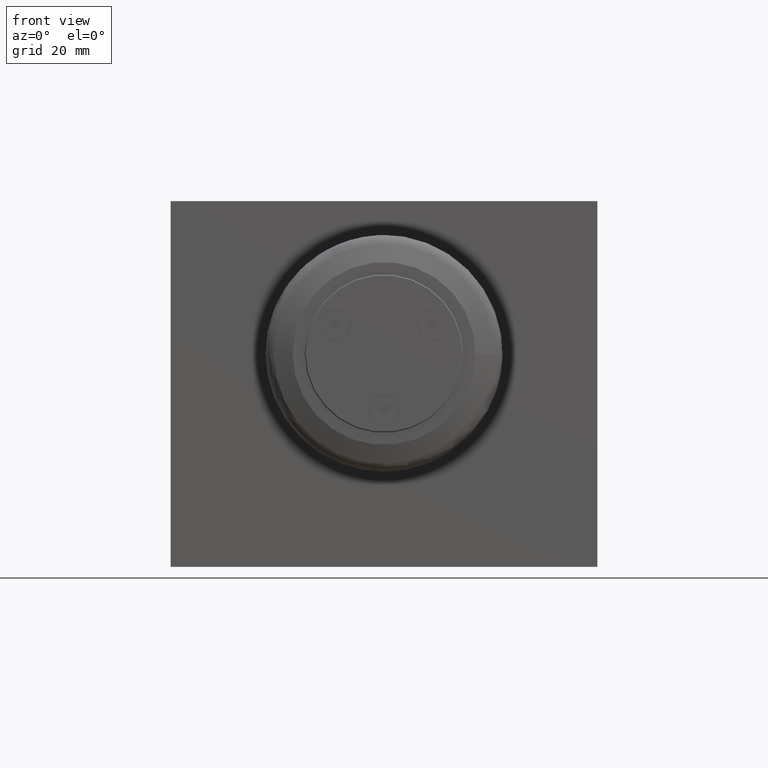
[diagram: clean part render]
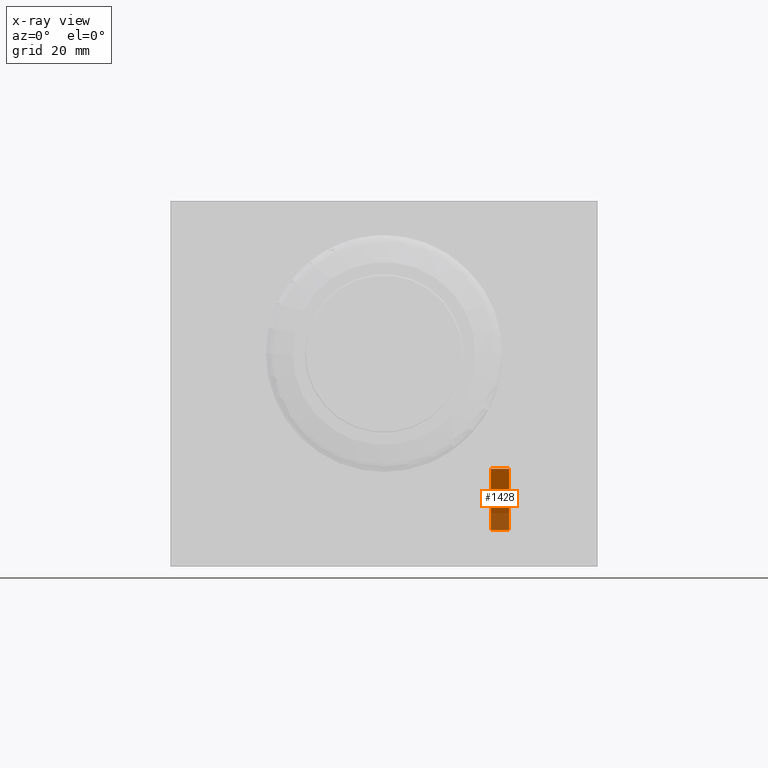
[diagram: x-ray — body ghosted, one internal face saturated and labeled with its STEP entity id]
A machine part, front view, then the same camera in x-ray: the body is ghosted and one INTERNAL B-rep face — a face not visible from any outside direction — is saturated and labeled: STEP entity #1428.
In plain terms, the highlighted planar face has unit normal (0, -0.7071, -0.7071).
Its self-contained STEP definition (entity closure, byte-faithful):
#205=FACE_OUTER_BOUND('',#308,.T.);
#308=EDGE_LOOP('',(#1272,#1273,#1274,#1275));
#396=LINE('',#2324,#526);
#417=LINE('',#2380,#547);
#433=LINE('',#2414,#563);
#437=LINE('',#2421,#567);
#526=VECTOR('',#1878,10.);
#547=VECTOR('',#1935,10.);
#563=VECTOR('',#1969,10.);
#567=VECTOR('',#1975,10.);
#674=VERTEX_POINT('',#2321);
#675=VERTEX_POINT('',#2323);
#691=VERTEX_POINT('',#2377);
#692=VERTEX_POINT('',#2379);
#844=EDGE_CURVE('',#674,#675,#396,.T.);
#872=EDGE_CURVE('',#691,#692,#417,.T.);
#889=EDGE_CURVE('',#692,#674,#433,.T.);
#893=EDGE_CURVE('',#691,#675,#437,.T.);
#1272=ORIENTED_EDGE('',*,*,#893,.T.);
#1273=ORIENTED_EDGE('',*,*,#844,.F.);
#1274=ORIENTED_EDGE('',*,*,#889,.F.);
#1275=ORIENTED_EDGE('',*,*,#872,.F.);
#1354=PLANE('',#1585);
#1428=ADVANCED_FACE('',(#205),#1354,.T.);
#1585=AXIS2_PLACEMENT_3D('',#2432,#1987,#1988);
#1878=DIRECTION('',(-1.,-2.21963426090634E-32,-5.47619791712236E-48));
#1935=DIRECTION('',(1.,-6.38889756997609E-48,2.21963426090634E-32));
#1969=DIRECTION('',(1.56951843764086E-32,0.707106781186548,-0.707106781186547));
#1975=DIRECTION('',(1.56951843764086E-32,0.707106781186548,-0.707106781186547));
#1987=DIRECTION('center_axis',(1.56951843764086E-32,-0.707106781186547,
-0.707106781186548));
#1988=DIRECTION('ref_axis',(-1.,-3.91153038217986E-48,-2.21963426090634E-32));
#2321=CARTESIAN_POINT('',(111.,32.1471862576142,12.));
#2323=CARTESIAN_POINT('',(105.,32.1471862576142,12.));
#2324=CARTESIAN_POINT('',(55.5,32.1471862576142,12.));
#2377=CARTESIAN_POINT('',(105.,11.9999999999999,32.1471862576143));
#2379=CARTESIAN_POINT('',(111.,11.9999999999999,32.1471862576143));
#2380=CARTESIAN_POINT('',(55.5,12.,32.1471862576142));
#2414=CARTESIAN_POINT('',(111.,11.9999999999999,32.1471862576143));
#2421=CARTESIAN_POINT('',(105.,11.9999999999999,32.1471862576143));
#2432=CARTESIAN_POINT('Origin',(111.,11.9999999999999,32.1471862576143));